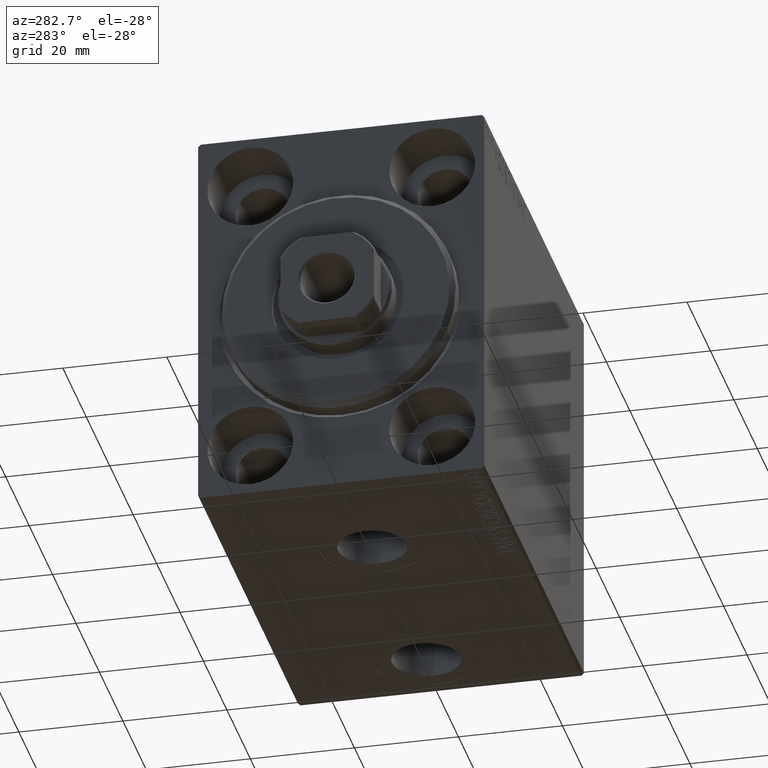
[diagram: clean part render]
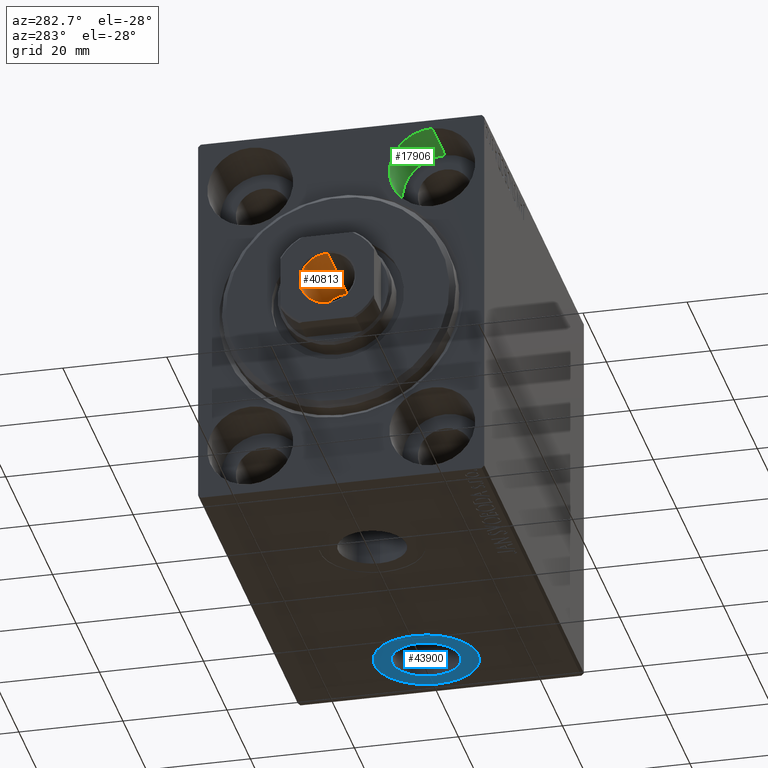
[diagram: same view with three faces highlighted in distinct colors, each labeled with its STEP entity id]
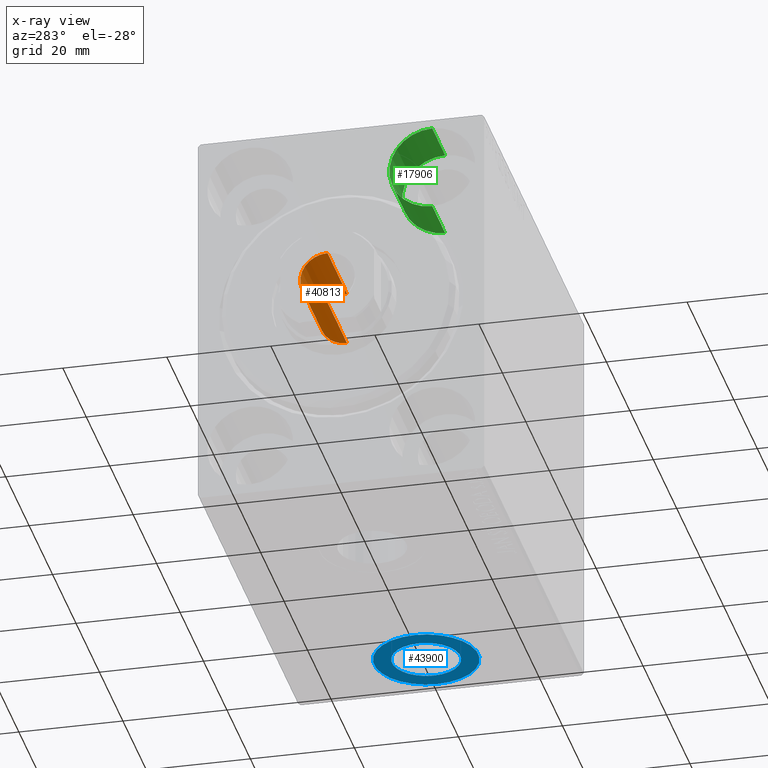
[diagram: x-ray of the same camera — body ghosted, the three highlighted faces saturated]
A machine part, auxiliary view with three faces highlighted in distinct colors.
The next image is the same camera in x-ray (body ghosted, the three faces saturated) — at least one of them is partly hidden behind the body in this view.
Their STEP definitions:

[orange] entity #40813 — the highlighted cylindrical surface (edge-blend (fillet) strip) has radius 5.25 mm, axis along (-1, 0, 0).
#796 = CARTESIAN_POINT ( 'NONE',  ( 5.249999999999996447, 0.000000000000000000, 87.00000000000001421 ) ) ;
#5420 = AXIS2_PLACEMENT_3D ( 'NONE', #16526, #30883, #6651 ) ;
#6651 = DIRECTION ( 'NONE',  ( 1.000000000000000000, 0.000000000000000000, 0.000000000000000000 ) ) ;
#7372 = DIRECTION ( 'NONE',  ( 1.000000000000000000, 0.000000000000000000, 0.000000000000000000 ) ) ;
#7449 = CARTESIAN_POINT ( 'NONE',  ( 5.249999999999996447, 0.000000000000000000, 86.70000000000000284 ) ) ;
#8100 = DIRECTION ( 'NONE',  ( -0.000000000000000000, -0.000000000000000000, 1.000000000000000000 ) ) ;
#8698 = EDGE_CURVE ( 'NONE', #44920, #40596, #10725, .T. ) ;
#9803 = AXIS2_PLACEMENT_3D ( 'NONE', #19507, #22684, #14940 ) ;
#10725 = LINE ( 'NONE', #24668, #10726 ) ;
#10726 = VECTOR ( 'NONE', #42465, 1000.000000000000000 ) ;
#11178 = VECTOR ( 'NONE', #8100, 1000.000000000000000 ) ;
#11543 = LINE ( 'NONE', #796, #11178 ) ;
#14486 = VERTEX_POINT ( 'NONE', #7449 ) ;
#14940 = DIRECTION ( 'NONE',  ( 1.000000000000000000, 0.000000000000000000, 0.000000000000000000 ) ) ;
#16526 = CARTESIAN_POINT ( 'NONE',  ( 0.000000000000000000, 0.000000000000000000, 70.00000000000000000 ) ) ;
#16699 = CARTESIAN_POINT ( 'NONE',  ( -5.249999999999995559, 6.429395695523600208E-16, 70.00000000000000000 ) ) ;
#17017 = CARTESIAN_POINT ( 'NONE',  ( -5.249999999999996447, 6.429395695523600208E-16, 86.70000000000000284 ) ) ;
#18584 = CYLINDRICAL_SURFACE ( 'NONE', #9803, 5.249999999999996447 ) ;
#18750 = CARTESIAN_POINT ( 'NONE',  ( 5.249999999999995559, 0.000000000000000000, 70.00000000000000000 ) ) ;
#19507 = CARTESIAN_POINT ( 'NONE',  ( 0.000000000000000000, 0.000000000000000000, 87.00000000000001421 ) ) ;
#20914 = ORIENTED_EDGE ( 'NONE', *, *, #35193, .T. ) ;
#22684 = DIRECTION ( 'NONE',  ( -0.000000000000000000, -0.000000000000000000, 1.000000000000000000 ) ) ;
#22939 = VERTEX_POINT ( 'NONE', #18750 ) ;
#24417 = EDGE_LOOP ( 'NONE', ( #26591, #39515, #20914, #26001 ) ) ;
#24668 = CARTESIAN_POINT ( 'NONE',  ( -5.249999999999996447, 6.429395695523600208E-16, 87.00000000000001421 ) ) ;
#25123 = CIRCLE ( 'NONE', #5420, 5.249999999999995559 ) ;
#26001 = ORIENTED_EDGE ( 'NONE', *, *, #35499, .T. ) ;
#26591 = ORIENTED_EDGE ( 'NONE', *, *, #8698, .F. ) ;
#30883 = DIRECTION ( 'NONE',  ( -0.000000000000000000, -0.000000000000000000, 1.000000000000000000 ) ) ;
#33909 = CIRCLE ( 'NONE', #37550, 5.249999999999996447 ) ;
#35193 = EDGE_CURVE ( 'NONE', #22939, #14486, #11543, .T. ) ;
#35499 = EDGE_CURVE ( 'NONE', #14486, #40596, #33909, .T. ) ;
#37550 = AXIS2_PLACEMENT_3D ( 'NONE', #43010, #42558, #7372 ) ;
#38349 = EDGE_CURVE ( 'NONE', #22939, #44920, #25123, .T. ) ;
#39515 = ORIENTED_EDGE ( 'NONE', *, *, #38349, .F. ) ;
#39570 = FACE_OUTER_BOUND ( 'NONE', #24417, .T. ) ;
#40596 = VERTEX_POINT ( 'NONE', #17017 ) ;
#40813 = ADVANCED_FACE ( 'NONE', ( #39570 ), #18584, .F. ) ;
#42465 = DIRECTION ( 'NONE',  ( -0.000000000000000000, -0.000000000000000000, 1.000000000000000000 ) ) ;
#42558 = DIRECTION ( 'NONE',  ( 0.000000000000000000, 0.000000000000000000, 1.000000000000000000 ) ) ;
#43010 = CARTESIAN_POINT ( 'NONE',  ( 0.000000000000000000, 0.000000000000000000, 86.70000000000000284 ) ) ;
#44920 = VERTEX_POINT ( 'NONE', #16699 ) ;

[blue] entity #43900 — the highlighted planar face has unit normal (0, 0, -1).
#226 = DIRECTION ( 'NONE',  ( 0.000000000000000000, 0.000000000000000000, -1.000000000000000000 ) ) ;
#913 = PLANE ( 'NONE',  #9154 ) ;
#3378 = ORIENTED_EDGE ( 'NONE', *, *, #40057, .T. ) ;
#3452 = CARTESIAN_POINT ( 'NONE',  ( 72.50000000000001421, -1.099277363720772100E-14, -37.39999999999999858 ) ) ;
#4262 = ORIENTED_EDGE ( 'NONE', *, *, #44672, .F. ) ;
#4911 = CARTESIAN_POINT ( 'NONE',  ( 62.50000000000001421, -1.099277363720772100E-14, -37.39999999999999858 ) ) ;
#5559 = DIRECTION ( 'NONE',  ( -1.000000000000000000, 0.000000000000000000, 0.000000000000000000 ) ) ;
#5988 = DIRECTION ( 'NONE',  ( 0.000000000000000000, 0.000000000000000000, -1.000000000000000000 ) ) ;
#6116 = AXIS2_PLACEMENT_3D ( 'NONE', #16295, #5988, #19942 ) ;
#7250 = CIRCLE ( 'NONE', #10172, 6.580000000000002736 ) ;
#9049 = CIRCLE ( 'NONE', #34569, 6.580000000000002736 ) ;
#9154 = AXIS2_PLACEMENT_3D ( 'NONE', #17637, #31558, #21277 ) ;
#10172 = AXIS2_PLACEMENT_3D ( 'NONE', #12031, #26205, #42882 ) ;
#10545 = FACE_BOUND ( 'NONE', #33609, .T. ) ;
#10991 = FACE_OUTER_BOUND ( 'NONE', #35731, .T. ) ;
#12031 = CARTESIAN_POINT ( 'NONE',  ( 72.50000000000001421, -1.099277363720772100E-14, -37.39999999999999858 ) ) ;
#15433 = CARTESIAN_POINT ( 'NONE',  ( 79.08000000000001251, -1.018695604336876196E-14, -37.39999999999999858 ) ) ;
#16295 = CARTESIAN_POINT ( 'NONE',  ( 72.50000000000001421, -1.099277363720772100E-14, -37.39999999999999858 ) ) ;
#16756 = ORIENTED_EDGE ( 'NONE', *, *, #17028, .F. ) ;
#17028 = EDGE_CURVE ( 'NONE', #22206, #25186, #7250, .T. ) ;
#17637 = CARTESIAN_POINT ( 'NONE',  ( 72.50000000000001421, -1.099277363720772100E-14, -37.39999999999999858 ) ) ;
#19279 = DIRECTION ( 'NONE',  ( 0.000000000000000000, 0.000000000000000000, -1.000000000000000000 ) ) ;
#19942 = DIRECTION ( 'NONE',  ( -1.000000000000000000, 0.000000000000000000, 0.000000000000000000 ) ) ;
#21277 = DIRECTION ( 'NONE',  ( -1.000000000000000000, 0.000000000000000000, -0.000000000000000000 ) ) ;
#22206 = VERTEX_POINT ( 'NONE', #15433 ) ;
#23123 = VERTEX_POINT ( 'NONE', #4911 ) ;
#25186 = VERTEX_POINT ( 'NONE', #42624 ) ;
#26125 = CARTESIAN_POINT ( 'NONE',  ( 72.50000000000001421, -1.099277363720772100E-14, -37.39999999999999858 ) ) ;
#26205 = DIRECTION ( 'NONE',  ( 0.000000000000000000, 0.000000000000000000, -1.000000000000000000 ) ) ;
#27332 = VERTEX_POINT ( 'NONE', #38641 ) ;
#31558 = DIRECTION ( 'NONE',  ( 0.000000000000000000, 0.000000000000000000, -1.000000000000000000 ) ) ;
#31994 = DIRECTION ( 'NONE',  ( -1.000000000000000000, 0.000000000000000000, 0.000000000000000000 ) ) ;
#33609 = EDGE_LOOP ( 'NONE', ( #4262, #16756 ) ) ;
#34569 = AXIS2_PLACEMENT_3D ( 'NONE', #26125, #19279, #5559 ) ;
#35731 = EDGE_LOOP ( 'NONE', ( #42637, #3378 ) ) ;
#37329 = EDGE_CURVE ( 'NONE', #23123, #27332, #44058, .T. ) ;
#38641 = CARTESIAN_POINT ( 'NONE',  ( 82.50000000000000000, -9.768126838060369520E-15, -37.39999999999999858 ) ) ;
#40057 = EDGE_CURVE ( 'NONE', #27332, #23123, #43354, .T. ) ;
#42624 = CARTESIAN_POINT ( 'NONE',  ( 65.92000000000000171, -1.099277363720772100E-14, -37.39999999999999858 ) ) ;
#42637 = ORIENTED_EDGE ( 'NONE', *, *, #37329, .T. ) ;
#42882 = DIRECTION ( 'NONE',  ( -1.000000000000000000, 0.000000000000000000, 0.000000000000000000 ) ) ;
#43354 = CIRCLE ( 'NONE', #44092, 9.999999999999994671 ) ;
#43900 = ADVANCED_FACE ( 'NONE', ( #10545, #10991 ), #913, .T. ) ;
#44058 = CIRCLE ( 'NONE', #6116, 9.999999999999994671 ) ;
#44092 = AXIS2_PLACEMENT_3D ( 'NONE', #3452, #226, #31994 ) ;
#44672 = EDGE_CURVE ( 'NONE', #25186, #22206, #9049, .T. ) ;

[green] entity #17906 — the highlighted cylindrical surface (partial cylindrical patch) has radius 8.25 mm, axis along (-1, -0, -0).
#993 = VECTOR ( 'NONE', #31278, 1000.000000000000000 ) ;
#1246 = CARTESIAN_POINT ( 'NONE',  ( 0.000000000000000000, -17.49999999999999645, 27.49999999999999645 ) ) ;
#1432 = AXIS2_PLACEMENT_3D ( 'NONE', #19563, #22974, #44444 ) ;
#1751 = CIRCLE ( 'NONE', #11243, 8.249999999999992895 ) ;
#3432 = ORIENTED_EDGE ( 'NONE', *, *, #25179, .T. ) ;
#4789 = CARTESIAN_POINT ( 'NONE',  ( 11.00000000000000000, -17.49999999999999645, 27.49999999999999645 ) ) ;
#10482 = LINE ( 'NONE', #34922, #993 ) ;
#11243 = AXIS2_PLACEMENT_3D ( 'NONE', #4789, #19196, #12105 ) ;
#11636 = CARTESIAN_POINT ( 'NONE',  ( 11.00000000000000000, -17.49999999999999645, 19.25000000000000000 ) ) ;
#12105 = DIRECTION ( 'NONE',  ( 0.000000000000000000, 0.000000000000000000, 1.000000000000000000 ) ) ;
#14848 = ORIENTED_EDGE ( 'NONE', *, *, #37760, .T. ) ;
#15506 = CARTESIAN_POINT ( 'NONE',  ( 11.00000000000000000, -17.49999999999999645, 35.74999999999999289 ) ) ;
#15698 = EDGE_LOOP ( 'NONE', ( #30068, #21137, #14848, #3432 ) ) ;
#16096 = CARTESIAN_POINT ( 'NONE',  ( 0.000000000000000000, -17.49999999999999645, 19.25000000000000000 ) ) ;
#17906 = ADVANCED_FACE ( 'NONE', ( #37348 ), #23205, .F. ) ;
#19196 = DIRECTION ( 'NONE',  ( -1.000000000000000000, 0.000000000000000000, 0.000000000000000000 ) ) ;
#19563 = CARTESIAN_POINT ( 'NONE',  ( 11.00000000000000000, -17.49999999999999645, 27.49999999999999645 ) ) ;
#20546 = AXIS2_PLACEMENT_3D ( 'NONE', #1246, #24821, #22055 ) ;
#21137 = ORIENTED_EDGE ( 'NONE', *, *, #37530, .F. ) ;
#22055 = DIRECTION ( 'NONE',  ( 0.000000000000000000, 0.000000000000000000, 1.000000000000000000 ) ) ;
#22974 = DIRECTION ( 'NONE',  ( -1.000000000000000000, -0.000000000000000000, -0.000000000000000000 ) ) ;
#23205 = CYLINDRICAL_SURFACE ( 'NONE', #1432, 8.249999999999992895 ) ;
#24156 = VERTEX_POINT ( 'NONE', #15506 ) ;
#24821 = DIRECTION ( 'NONE',  ( -1.000000000000000000, 0.000000000000000000, 0.000000000000000000 ) ) ;
#25179 = EDGE_CURVE ( 'NONE', #34828, #26350, #34391, .T. ) ;
#26350 = VERTEX_POINT ( 'NONE', #16096 ) ;
#26739 = CARTESIAN_POINT ( 'NONE',  ( 0.000000000000000000, -17.49999999999999645, 35.74999999999999289 ) ) ;
#27219 = EDGE_CURVE ( 'NONE', #31530, #26350, #35000, .T. ) ;
#28160 = CARTESIAN_POINT ( 'NONE',  ( 11.00000000000000000, -17.49999999999999645, 19.25000000000000000 ) ) ;
#30068 = ORIENTED_EDGE ( 'NONE', *, *, #27219, .F. ) ;
#31278 = DIRECTION ( 'NONE',  ( -1.000000000000000000, -0.000000000000000000, -0.000000000000000000 ) ) ;
#31530 = VERTEX_POINT ( 'NONE', #11636 ) ;
#34391 = CIRCLE ( 'NONE', #20546, 8.249999999999992895 ) ;
#34828 = VERTEX_POINT ( 'NONE', #26739 ) ;
#34922 = CARTESIAN_POINT ( 'NONE',  ( 11.00000000000000000, -17.49999999999999645, 35.74999999999999289 ) ) ;
#35000 = LINE ( 'NONE', #28160, #38770 ) ;
#37348 = FACE_OUTER_BOUND ( 'NONE', #15698, .T. ) ;
#37530 = EDGE_CURVE ( 'NONE', #24156, #31530, #1751, .T. ) ;
#37760 = EDGE_CURVE ( 'NONE', #24156, #34828, #10482, .T. ) ;
#38425 = DIRECTION ( 'NONE',  ( -1.000000000000000000, -0.000000000000000000, -0.000000000000000000 ) ) ;
#38770 = VECTOR ( 'NONE', #38425, 1000.000000000000000 ) ;
#44444 = DIRECTION ( 'NONE',  ( 0.000000000000000000, 0.000000000000000000, 1.000000000000000000 ) ) ;